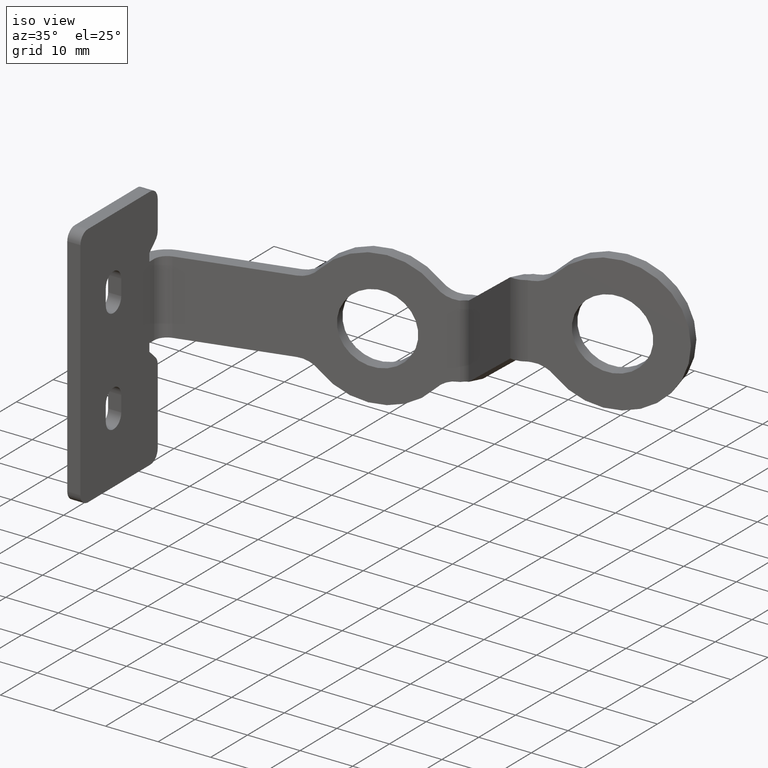
[diagram: clean part render]
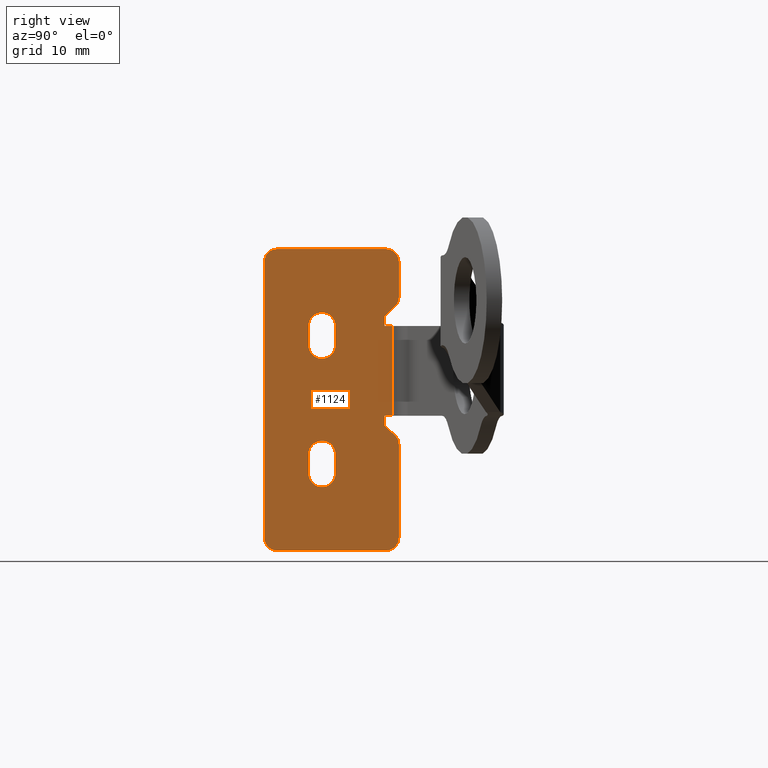
[diagram: tour spotlight — one face highlighted and labeled with its STEP entity id]
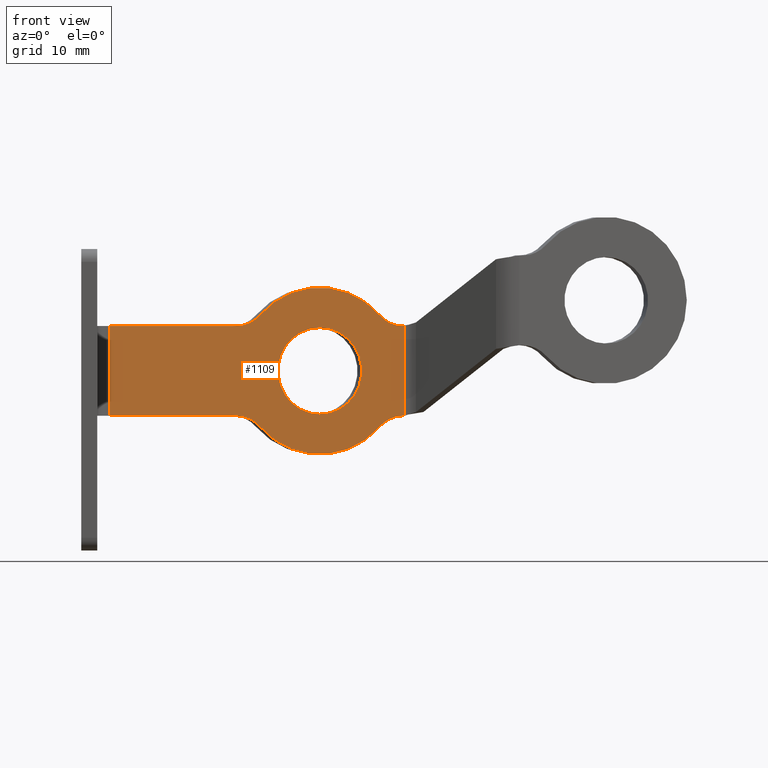
[diagram: tour spotlight — one face highlighted and labeled with its STEP entity id]
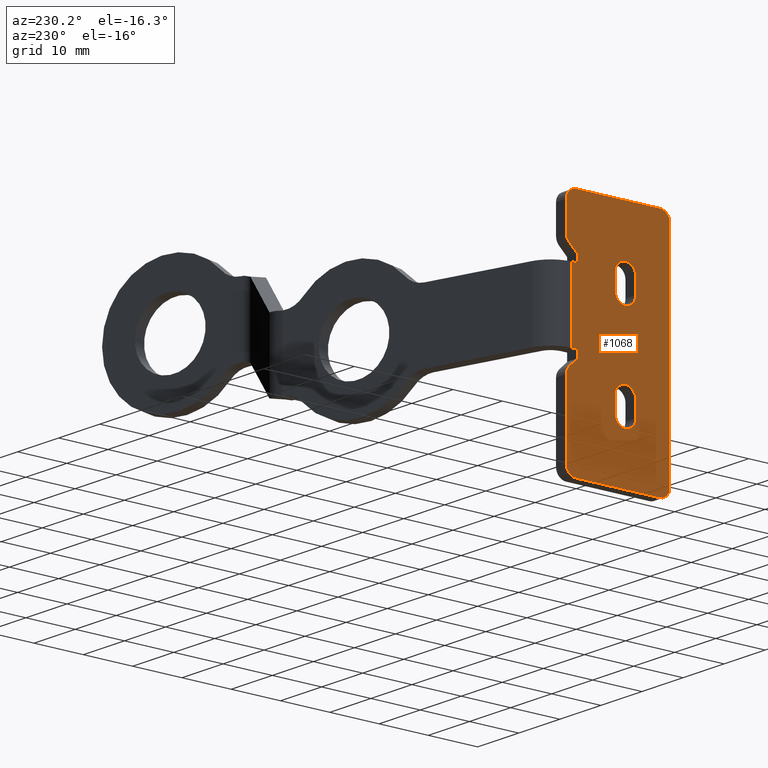
[diagram: tour spotlight — one face highlighted and labeled with its STEP entity id]
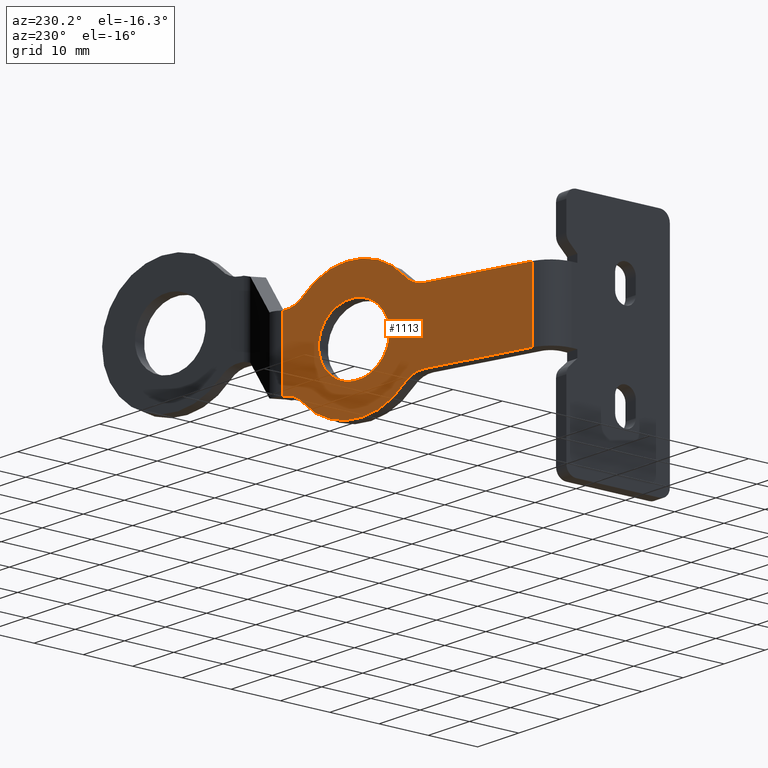
[diagram: tour spotlight — one face highlighted and labeled with its STEP entity id]
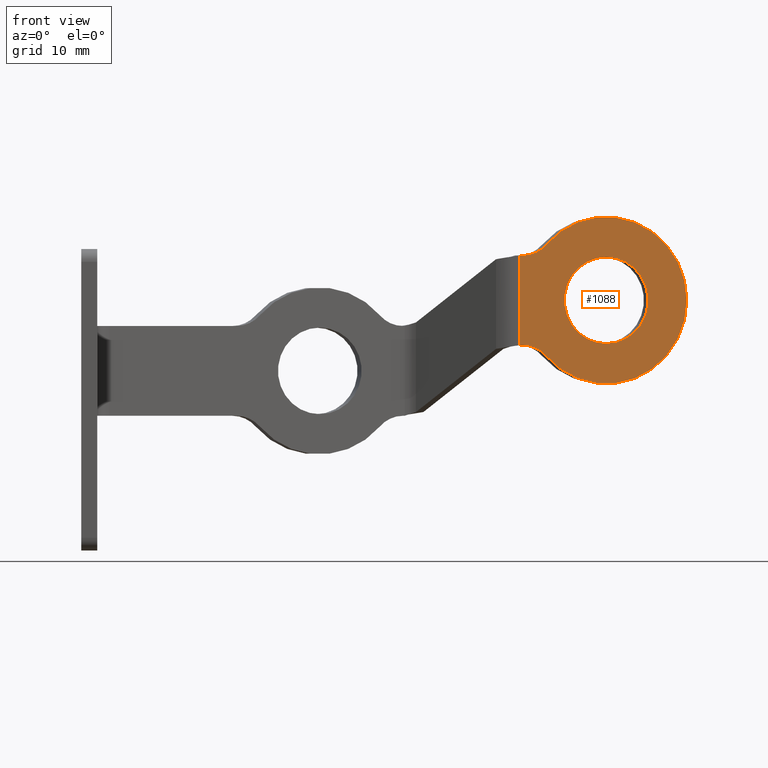
[diagram: tour spotlight — one face highlighted and labeled with its STEP entity id]
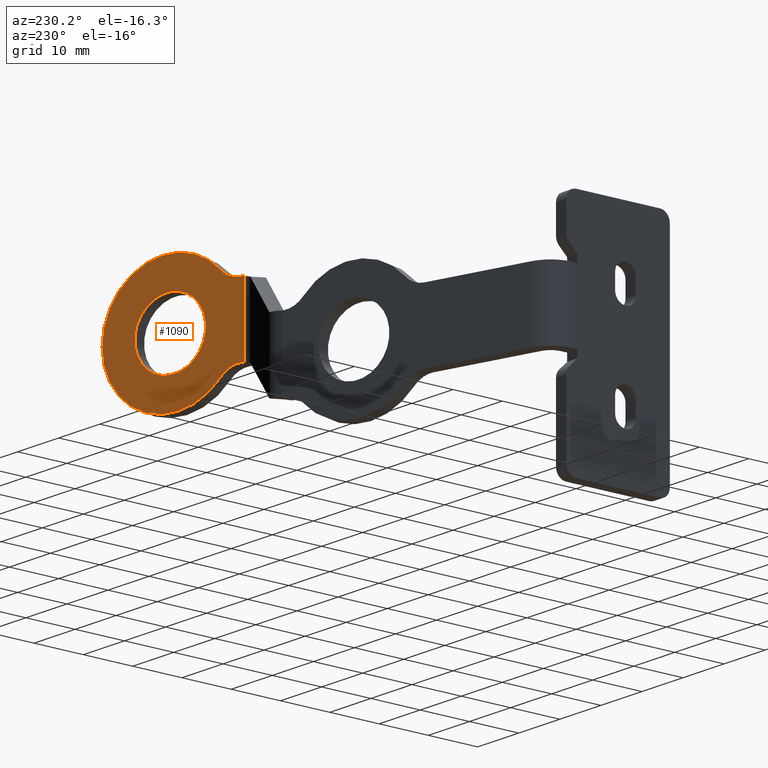
[diagram: tour spotlight — one face highlighted and labeled with its STEP entity id]
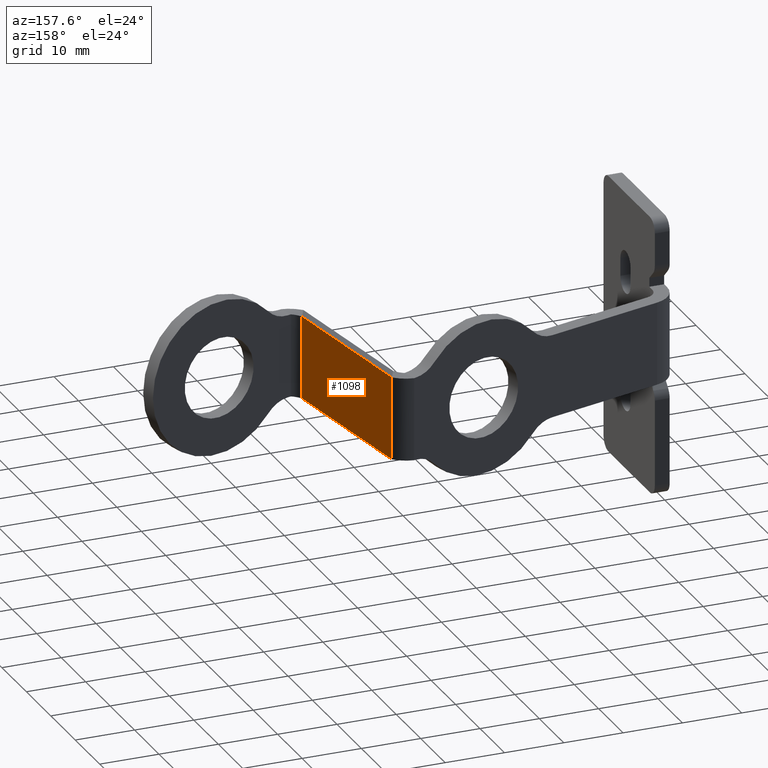
[diagram: tour spotlight — one face highlighted and labeled with its STEP entity id]
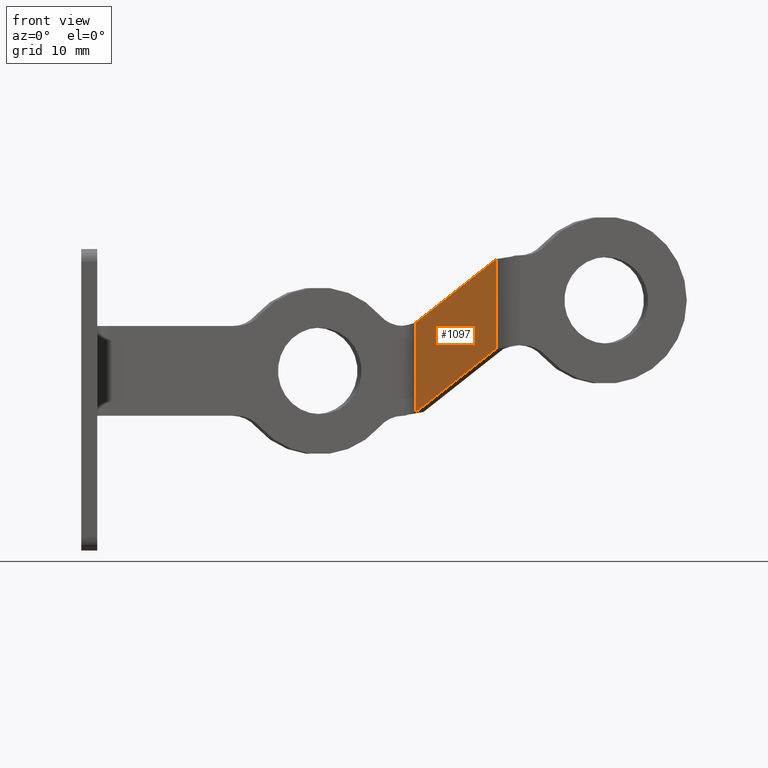
[diagram: tour spotlight — one face highlighted and labeled with its STEP entity id]
A machine part: a face-by-face anatomy tour. The part has 62 B-rep faces; the first image is the clean iso view, then the 8 largest visible faces are spotlighted one at a time (largest first), each with its STEP entity span.

Face 1 — right view, entity #1124. In plain terms, the highlighted planar face has unit normal (1, 0, 0).
Definition (entity closure, byte-faithful):
#33=FACE_BOUND('',#238,.T.);
#34=FACE_BOUND('',#239,.T.);
#36=CIRCLE('',#1144,2.);
#37=CIRCLE('',#1146,2.);
#47=CIRCLE('',#1159,2.);
#48=CIRCLE('',#1162,2.);
#49=CIRCLE('',#1165,2.);
#50=CIRCLE('',#1168,2.);
#77=CIRCLE('',#1231,2.1);
#78=CIRCLE('',#1234,2.1);
#79=CIRCLE('',#1237,2.1);
#80=CIRCLE('',#1240,2.1);
#169=FACE_OUTER_BOUND('',#237,.T.);
#237=EDGE_LOOP('',(#1006,#1007,#1008,#1009,#1010,#1011,#1012,#1013,#1014,
#1015,#1016,#1017,#1018,#1019,#1020,#1021,#1022,#1023));
#238=EDGE_LOOP('',(#1024,#1025,#1026,#1027));
#239=EDGE_LOOP('',(#1028,#1029,#1030,#1031));
#242=LINE('',#1567,#348);
#246=LINE('',#1574,#352);
#249=LINE('',#1582,#355);
#267=LINE('',#1640,#373);
#271=LINE('',#1650,#377);
#273=LINE('',#1656,#379);
#276=LINE('',#1664,#382);
#279=LINE('',#1675,#385);
#282=LINE('',#1685,#388);
#331=LINE('',#1927,#437);
#332=LINE('',#1930,#438);
#334=LINE('',#1935,#440);
#337=LINE('',#1943,#443);
#340=LINE('',#1951,#446);
#343=LINE('',#1959,#449);
#345=LINE('',#1964,#451);
#348=VECTOR('',#1249,10.);
#352=VECTOR('',#1255,10.);
#355=VECTOR('',#1260,10.);
#373=VECTOR('',#1310,10.);
#377=VECTOR('',#1320,10.);
#379=VECTOR('',#1328,10.);
#382=VECTOR('',#1337,10.);
#385=VECTOR('',#1348,10.);
#388=VECTOR('',#1357,10.);
#437=VECTOR('',#1512,10.);
#438=VECTOR('',#1517,10.);
#440=VECTOR('',#1521,10.);
#443=VECTOR('',#1530,10.);
#446=VECTOR('',#1539,10.);
#449=VECTOR('',#1548,10.);
#451=VECTOR('',#1556,10.);
#454=VERTEX_POINT('',#1564);
#455=VERTEX_POINT('',#1566);
#457=VERTEX_POINT('',#1572);
#460=VERTEX_POINT('',#1579);
#461=VERTEX_POINT('',#1581);
#463=VERTEX_POINT('',#1587);
#464=VERTEX_POINT('',#1591);
#485=VERTEX_POINT('',#1638);
#486=VERTEX_POINT('',#1642);
#487=VERTEX_POINT('',#1643);
#488=VERTEX_POINT('',#1648);
#489=VERTEX_POINT('',#1652);
#490=VERTEX_POINT('',#1658);
#491=VERTEX_POINT('',#1659);
#492=VERTEX_POINT('',#1666);
#495=VERTEX_POINT('',#1673);
#498=VERTEX_POINT('',#1682);
#499=VERTEX_POINT('',#1684);
#544=VERTEX_POINT('',#1932);
#545=VERTEX_POINT('',#1934);
#546=VERTEX_POINT('',#1938);
#547=VERTEX_POINT('',#1942);
#548=VERTEX_POINT('',#1948);
#549=VERTEX_POINT('',#1950);
#550=VERTEX_POINT('',#1954);
#551=VERTEX_POINT('',#1958);
#554=EDGE_CURVE('',#455,#454,#242,.T.);
#558=EDGE_CURVE('',#454,#457,#246,.T.);
#561=EDGE_CURVE('',#461,#460,#249,.T.);
#565=EDGE_CURVE('',#463,#460,#36,.T.);
#566=EDGE_CURVE('',#455,#464,#37,.T.);
#591=EDGE_CURVE('',#463,#485,#267,.T.);
#592=EDGE_CURVE('',#486,#487,#47,.T.);
#596=EDGE_CURVE('',#486,#488,#271,.T.);
#597=EDGE_CURVE('',#489,#488,#48,.T.);
#599=EDGE_CURVE('',#489,#464,#273,.T.);
#600=EDGE_CURVE('',#490,#491,#49,.T.);
#603=EDGE_CURVE('',#490,#487,#276,.T.);
#604=EDGE_CURVE('',#492,#485,#50,.T.);
#608=EDGE_CURVE('',#457,#495,#279,.T.);
#613=EDGE_CURVE('',#499,#498,#282,.T.);
#693=EDGE_CURVE('',#495,#499,#331,.T.);
#694=EDGE_CURVE('',#498,#461,#332,.T.);
#696=EDGE_CURVE('',#545,#544,#334,.T.);
#698=EDGE_CURVE('',#546,#545,#77,.T.);
#700=EDGE_CURVE('',#547,#546,#337,.T.);
#702=EDGE_CURVE('',#544,#547,#78,.T.);
#704=EDGE_CURVE('',#549,#548,#340,.T.);
#706=EDGE_CURVE('',#550,#549,#79,.T.);
#708=EDGE_CURVE('',#551,#550,#343,.T.);
#710=EDGE_CURVE('',#548,#551,#80,.T.);
#711=EDGE_CURVE('',#492,#491,#345,.T.);
#1006=ORIENTED_EDGE('',*,*,#558,.T.);
#1007=ORIENTED_EDGE('',*,*,#608,.T.);
#1008=ORIENTED_EDGE('',*,*,#693,.T.);
#1009=ORIENTED_EDGE('',*,*,#613,.T.);
#1010=ORIENTED_EDGE('',*,*,#694,.T.);
#1011=ORIENTED_EDGE('',*,*,#561,.T.);
#1012=ORIENTED_EDGE('',*,*,#565,.F.);
#1013=ORIENTED_EDGE('',*,*,#591,.T.);
#1014=ORIENTED_EDGE('',*,*,#604,.F.);
#1015=ORIENTED_EDGE('',*,*,#711,.T.);
#1016=ORIENTED_EDGE('',*,*,#600,.F.);
#1017=ORIENTED_EDGE('',*,*,#603,.T.);
#1018=ORIENTED_EDGE('',*,*,#592,.F.);
#1019=ORIENTED_EDGE('',*,*,#596,.T.);
#1020=ORIENTED_EDGE('',*,*,#597,.F.);
#1021=ORIENTED_EDGE('',*,*,#599,.T.);
#1022=ORIENTED_EDGE('',*,*,#566,.F.);
#1023=ORIENTED_EDGE('',*,*,#554,.T.);
#1024=ORIENTED_EDGE('',*,*,#710,.T.);
#1025=ORIENTED_EDGE('',*,*,#708,.T.);
#1026=ORIENTED_EDGE('',*,*,#706,.T.);
#1027=ORIENTED_EDGE('',*,*,#704,.T.);
#1028=ORIENTED_EDGE('',*,*,#702,.T.);
#1029=ORIENTED_EDGE('',*,*,#700,.T.);
#1030=ORIENTED_EDGE('',*,*,#698,.T.);
#1031=ORIENTED_EDGE('',*,*,#696,.T.);
#1062=PLANE('',#1242);
#1124=ADVANCED_FACE('',(#169,#33,#34),#1062,.T.);
#1144=AXIS2_PLACEMENT_3D('',#1589,#1267,#1268);
#1146=AXIS2_PLACEMENT_3D('',#1592,#1271,#1272);
#1159=AXIS2_PLACEMENT_3D('',#1644,#1313,#1314);
#1162=AXIS2_PLACEMENT_3D('',#1653,#1323,#1324);
#1165=AXIS2_PLACEMENT_3D('',#1660,#1331,#1332);
#1168=AXIS2_PLACEMENT_3D('',#1667,#1340,#1341);
#1231=AXIS2_PLACEMENT_3D('',#1939,#1525,#1526);
#1234=AXIS2_PLACEMENT_3D('',#1946,#1534,#1535);
#1237=AXIS2_PLACEMENT_3D('',#1955,#1543,#1544);
#1240=AXIS2_PLACEMENT_3D('',#1962,#1552,#1553);
#1242=AXIS2_PLACEMENT_3D('',#1965,#1557,#1558);
#1249=DIRECTION('',(0.,-0.724137931034481,0.689655172413795));
#1255=DIRECTION('',(0.,0.,1.));
#1260=DIRECTION('',(0.,0.724137931034483,0.689655172413792));
#1267=DIRECTION('center_axis',(-1.,0.,0.));
#1268=DIRECTION('ref_axis',(0.,0.707106781186548,-0.707106781186548));
#1271=DIRECTION('center_axis',(-1.,0.,0.));
#1272=DIRECTION('ref_axis',(0.,0.707106781186548,0.707106781186547));
#1310=DIRECTION('',(0.,0.,1.));
#1313=DIRECTION('center_axis',(-1.,0.,0.));
#1314=DIRECTION('ref_axis',(0.,-0.707106781186547,-0.707106781186548));
#1320=DIRECTION('',(0.,1.,0.));
#1323=DIRECTION('center_axis',(-1.,0.,0.));
#1324=DIRECTION('ref_axis',(0.,0.707106781186547,-0.707106781186548));
#1328=DIRECTION('',(0.,0.,1.));
#1331=DIRECTION('center_axis',(-1.,0.,0.));
#1332=DIRECTION('ref_axis',(0.,-0.707106781186547,0.707106781186548));
#1337=DIRECTION('',(0.,0.,-1.));
#1340=DIRECTION('center_axis',(-1.,0.,0.));
#1341=DIRECTION('ref_axis',(0.,0.707106781186548,0.707106781186548));
#1348=DIRECTION('',(0.,1.,0.));
#1357=DIRECTION('',(0.,-1.,0.));
#1512=DIRECTION('',(0.,0.,1.));
#1517=DIRECTION('',(0.,0.,1.));
#1521=DIRECTION('',(0.,-9.25185853854296E-17,1.));
#1525=DIRECTION('center_axis',(-1.,0.,0.));
#1526=DIRECTION('ref_axis',(0.,-1.,0.));
#1530=DIRECTION('',(0.,-9.25185853854296E-17,-1.));
#1534=DIRECTION('center_axis',(-1.,0.,0.));
#1535=DIRECTION('ref_axis',(0.,1.,-1.32169407693471E-16));
#1539=DIRECTION('',(0.,1.85037170770859E-16,1.));
#1543=DIRECTION('center_axis',(-1.,0.,0.));
#1544=DIRECTION('ref_axis',(0.,-1.,0.));
#1548=DIRECTION('',(0.,0.,-1.));
#1552=DIRECTION('center_axis',(-1.,0.,0.));
#1553=DIRECTION('ref_axis',(0.,1.,0.));
#1556=DIRECTION('',(0.,-1.,0.));
#1557=DIRECTION('center_axis',(1.,0.,0.));
#1558=DIRECTION('ref_axis',(0.,1.,0.));
#1564=CARTESIAN_POINT('',(2.5,9.75,6.00000000000001));
#1566=CARTESIAN_POINT('',(2.5,11.3793103448276,4.44827586206898));
#1567=CARTESIAN_POINT('',(2.5,11.3793103448276,4.44827586206898));
#1572=CARTESIAN_POINT('',(2.5,9.75,7.5));
#1574=CARTESIAN_POINT('',(2.5,9.75,7.5));
#1579=CARTESIAN_POINT('',(2.5,11.3793103448276,24.551724137931));
#1581=CARTESIAN_POINT('',(2.5,9.75,23.));
#1582=CARTESIAN_POINT('',(2.5,11.3793103448276,24.551724137931));
#1587=CARTESIAN_POINT('',(2.5,12.,26.));
#1589=CARTESIAN_POINT('Origin',(2.5,10.,26.));
#1591=CARTESIAN_POINT('',(2.5,12.,3.));
#1592=CARTESIAN_POINT('Origin',(2.5,10.,3.));
#1638=CARTESIAN_POINT('',(2.5,12.,31.5));
#1640=CARTESIAN_POINT('',(2.5,12.,33.5));
#1642=CARTESIAN_POINT('',(2.5,-7.,-13.5));
#1643=CARTESIAN_POINT('',(2.5,-9.,-11.5));
#1644=CARTESIAN_POINT('Origin',(2.5,-7.,-11.5));
#1648=CARTESIAN_POINT('',(2.5,10.,-13.5));
#1650=CARTESIAN_POINT('',(2.5,11.,-13.5));
#1652=CARTESIAN_POINT('',(2.5,12.,-11.5));
#1653=CARTESIAN_POINT('Origin',(2.5,10.,-11.5));
#1656=CARTESIAN_POINT('',(2.5,12.,33.5));
#1658=CARTESIAN_POINT('',(2.5,-9.,31.5));
#1659=CARTESIAN_POINT('',(2.5,-7.,33.5));
#1660=CARTESIAN_POINT('Origin',(2.5,-7.,31.5));
#1664=CARTESIAN_POINT('',(2.5,-9.,-13.5));
#1666=CARTESIAN_POINT('',(2.5,10.,33.5));
#1667=CARTESIAN_POINT('Origin',(2.5,10.,31.5));
#1673=CARTESIAN_POINT('',(2.5,11.,7.50000000000001));
#1675=CARTESIAN_POINT('',(2.5,5.125,7.5));
#1682=CARTESIAN_POINT('',(2.5,9.75,21.5));
#1684=CARTESIAN_POINT('',(2.5,11.,21.5));
#1685=CARTESIAN_POINT('',(2.5,5.75,21.5));
#1927=CARTESIAN_POINT('',(2.5,11.,33.5));
#1930=CARTESIAN_POINT('',(2.5,9.75,15.75));
#1932=CARTESIAN_POINT('',(2.5,-2.1,1.5));
#1934=CARTESIAN_POINT('',(2.5,-2.1,-1.5));
#1935=CARTESIAN_POINT('',(2.5,-2.1,1.5));
#1938=CARTESIAN_POINT('',(2.5,2.1,-1.5));
#1939=CARTESIAN_POINT('Origin',(2.5,0.,-1.5));
#1942=CARTESIAN_POINT('',(2.5,2.1,1.5));
#1943=CARTESIAN_POINT('',(2.5,2.1,-1.5));
#1946=CARTESIAN_POINT('Origin',(2.5,0.,1.5));
#1948=CARTESIAN_POINT('',(2.5,-2.1,21.5));
#1950=CARTESIAN_POINT('',(2.5,-2.1,18.5));
#1951=CARTESIAN_POINT('',(2.5,-2.1,21.5));
#1954=CARTESIAN_POINT('',(2.5,2.1,18.5));
#1955=CARTESIAN_POINT('Origin',(2.5,0.,18.5));
#1958=CARTESIAN_POINT('',(2.5,2.1,21.5));
#1959=CARTESIAN_POINT('',(2.5,2.1,18.5));
#1962=CARTESIAN_POINT('Origin',(2.5,0.,21.5));
#1964=CARTESIAN_POINT('',(2.5,-10.,33.5));
#1965=CARTESIAN_POINT('Origin',(2.5,0.500000000000002,10.));

Face 2 — front view, entity #1109. In plain terms, the highlighted planar face has unit normal (0.2588, -0.9659, 0).
Definition (entity closure, byte-faithful):
#31=FACE_BOUND('',#221,.T.);
#55=CIRCLE('',#1176,5.);
#57=CIRCLE('',#1179,13.);
#60=CIRCLE('',#1183,5.);
#61=CIRCLE('',#1185,5.);
#63=CIRCLE('',#1188,13.);
#66=CIRCLE('',#1192,5.);
#76=CIRCLE('',#1210,6.75);
#154=FACE_OUTER_BOUND('',#220,.T.);
#220=EDGE_LOOP('',(#928,#929,#930,#931,#932,#933,#934,#935,#936,#937,#938,
#939));
#221=EDGE_LOOP('',(#940));
#307=LINE('',#1783,#413);
#308=LINE('',#1786,#414);
#324=LINE('',#1915,#430);
#326=LINE('',#1919,#432);
#327=LINE('',#1920,#433);
#328=LINE('',#1921,#434);
#413=VECTOR('',#1460,3.6);
#414=VECTOR('',#1463,3.6);
#430=VECTOR('',#1495,10.);
#432=VECTOR('',#1501,10.);
#433=VECTOR('',#1502,3.6);
#434=VECTOR('',#1503,3.6);
#493=VERTEX_POINT('',#1670);
#497=VERTEX_POINT('',#1679);
#500=VERTEX_POINT('',#1688);
#501=VERTEX_POINT('',#1689);
#504=VERTEX_POINT('',#1697);
#507=VERTEX_POINT('',#1705);
#508=VERTEX_POINT('',#1709);
#509=VERTEX_POINT('',#1710);
#512=VERTEX_POINT('',#1718);
#515=VERTEX_POINT('',#1726);
#531=VERTEX_POINT('',#1773);
#533=VERTEX_POINT('',#1781);
#534=VERTEX_POINT('',#1785);
#615=EDGE_CURVE('',#500,#501,#55,.T.);
#619=EDGE_CURVE('',#501,#504,#57,.T.);
#623=EDGE_CURVE('',#504,#507,#60,.T.);
#625=EDGE_CURVE('',#508,#509,#61,.T.);
#629=EDGE_CURVE('',#509,#512,#63,.T.);
#633=EDGE_CURVE('',#512,#515,#66,.T.);
#657=EDGE_CURVE('',#531,#531,#76,.T.);
#661=EDGE_CURVE('',#533,#500,#307,.T.);
#662=EDGE_CURVE('',#534,#515,#308,.T.);
#686=EDGE_CURVE('',#533,#534,#324,.T.);
#688=EDGE_CURVE('',#497,#493,#326,.T.);
#689=EDGE_CURVE('',#507,#493,#327,.T.);
#690=EDGE_CURVE('',#508,#497,#328,.T.);
#928=ORIENTED_EDGE('',*,*,#688,.T.);
#929=ORIENTED_EDGE('',*,*,#689,.F.);
#930=ORIENTED_EDGE('',*,*,#623,.F.);
#931=ORIENTED_EDGE('',*,*,#619,.F.);
#932=ORIENTED_EDGE('',*,*,#615,.F.);
#933=ORIENTED_EDGE('',*,*,#661,.F.);
#934=ORIENTED_EDGE('',*,*,#686,.T.);
#935=ORIENTED_EDGE('',*,*,#662,.T.);
#936=ORIENTED_EDGE('',*,*,#633,.F.);
#937=ORIENTED_EDGE('',*,*,#629,.F.);
#938=ORIENTED_EDGE('',*,*,#625,.F.);
#939=ORIENTED_EDGE('',*,*,#690,.T.);
#940=ORIENTED_EDGE('',*,*,#657,.T.);
#1052=PLANE('',#1223);
#1109=ADVANCED_FACE('',(#154,#31),#1052,.T.);
#1176=AXIS2_PLACEMENT_3D('',#1690,#1362,#1363);
#1179=AXIS2_PLACEMENT_3D('',#1698,#1370,#1371);
#1183=AXIS2_PLACEMENT_3D('',#1706,#1379,#1380);
#1185=AXIS2_PLACEMENT_3D('',#1711,#1384,#1385);
#1188=AXIS2_PLACEMENT_3D('',#1719,#1392,#1393);
#1192=AXIS2_PLACEMENT_3D('',#1727,#1401,#1402);
#1210=AXIS2_PLACEMENT_3D('',#1775,#1451,#1452);
#1223=AXIS2_PLACEMENT_3D('',#1918,#1499,#1500);
#1362=DIRECTION('center_axis',(0.258819045102521,-0.965925826289068,0.));
#1363=DIRECTION('ref_axis',(-0.394337567297406,-0.105662432702594,0.912870929175277));
#1370=DIRECTION('center_axis',(-0.258819045102521,0.965925826289068,0.));
#1371=DIRECTION('ref_axis',(-0.965925826289068,-0.258819045102521,0.));
#1379=DIRECTION('center_axis',(0.258819045102521,-0.965925826289068,0.));
#1380=DIRECTION('ref_axis',(0.394337567297407,0.105662432702594,0.912870929175277));
#1384=DIRECTION('center_axis',(0.258819045102521,-0.965925826289068,0.));
#1385=DIRECTION('ref_axis',(0.394337567297406,0.105662432702594,-0.912870929175277));
#1392=DIRECTION('center_axis',(-0.258819045102521,0.965925826289068,0.));
#1393=DIRECTION('ref_axis',(-0.965925826289068,-0.258819045102521,0.));
#1401=DIRECTION('center_axis',(0.258819045102521,-0.965925826289068,0.));
#1402=DIRECTION('ref_axis',(-0.394337567297407,-0.105662432702594,-0.912870929175276));
#1451=DIRECTION('center_axis',(-0.258819045102521,0.965925826289068,0.));
#1452=DIRECTION('ref_axis',(0.,0.,1.));
#1460=DIRECTION('',(-0.965925826289068,-0.258819045102521,0.));
#1463=DIRECTION('',(-0.965925826289068,-0.258819045102521,0.));
#1495=DIRECTION('',(0.,0.,1.));
#1499=DIRECTION('center_axis',(0.258819045102521,-0.965925826289068,0.));
#1500=DIRECTION('ref_axis',(0.965925826289068,0.258819045102521,0.));
#1501=DIRECTION('',(0.,0.,-1.));
#1502=DIRECTION('',(-0.965925826289068,-0.258819045102521,0.));
#1503=DIRECTION('',(-0.965925826289068,-0.258819045102521,0.));
#1670=CARTESIAN_POINT('',(4.35295238724369,13.4148145657227,7.50000000000001));
#1679=CARTESIAN_POINT('',(4.35295238724369,13.4148145657227,21.5));
#1688=CARTESIAN_POINT('',(50.1536853339021,25.6870839715333,7.5));
#1689=CARTESIAN_POINT('',(46.5538923192271,24.7225223403319,5.83333333333334));
#1690=CARTESIAN_POINT('Origin',(50.1536853339021,25.6870839715333,2.50000000000001));
#1697=CARTESIAN_POINT('',(27.834968642917,19.7068018580848,5.83333333333334));
#1698=CARTESIAN_POINT('Origin',(37.194430481072,22.2146620992084,14.5));
#1705=CARTESIAN_POINT('',(24.235175628242,18.7422402268835,7.5));
#1706=CARTESIAN_POINT('Origin',(24.235175628242,18.7422402268835,2.50000000000001));
#1709=CARTESIAN_POINT('',(24.235175628242,18.7422402268835,21.5));
#1710=CARTESIAN_POINT('',(27.834968642917,19.7068018580848,23.1666666666667));
#1711=CARTESIAN_POINT('Origin',(24.235175628242,18.7422402268835,26.5));
#1718=CARTESIAN_POINT('',(46.5538923192271,24.7225223403319,23.1666666666667));
#1719=CARTESIAN_POINT('Origin',(37.194430481072,22.2146620992084,14.5));
#1726=CARTESIAN_POINT('',(50.1536853339021,25.6870839715333,21.5));
#1727=CARTESIAN_POINT('Origin',(50.1536853339021,25.6870839715333,26.5));
#1773=CARTESIAN_POINT('',(37.194430481072,22.2146620992084,7.75));
#1775=CARTESIAN_POINT('Origin',(37.194430481072,22.2146620992084,14.5));
#1781=CARTESIAN_POINT('',(50.3922276666433,25.751001196952,7.50000000000001));
#1783=CARTESIAN_POINT('',(-6.5714113399729,10.4876401271911,7.5));
#1785=CARTESIAN_POINT('',(50.3922276666433,25.751001196952,21.5));
#1786=CARTESIAN_POINT('',(-6.5714113399729,10.4876401271911,21.5));
#1915=CARTESIAN_POINT('',(50.3922276666433,25.751001196952,7.50000000000001));
#1918=CARTESIAN_POINT('Origin',(-10.3410870084651,9.47755857609139,10.));
#1919=CARTESIAN_POINT('',(4.35295238724369,13.4148145657227,14.5));
#1920=CARTESIAN_POINT('',(-6.5714113399729,10.4876401271911,7.5));
#1921=CARTESIAN_POINT('',(-6.5714113399729,10.4876401271911,21.5));

Face 3 — auxiliary view, entity #1068. In plain terms, the highlighted planar face has unit normal (1, 0, 0).
Definition (entity closure, byte-faithful):
#27=FACE_BOUND('',#176,.T.);
#28=FACE_BOUND('',#177,.T.);
#35=CIRCLE('',#1143,2.);
#38=CIRCLE('',#1147,2.);
#39=CIRCLE('',#1149,2.);
#40=CIRCLE('',#1150,2.);
#41=CIRCLE('',#1151,2.);
#42=CIRCLE('',#1152,2.);
#43=CIRCLE('',#1153,2.1);
#44=CIRCLE('',#1154,2.1);
#45=CIRCLE('',#1155,2.1);
#46=CIRCLE('',#1156,2.1);
#113=FACE_OUTER_BOUND('',#175,.T.);
#175=EDGE_LOOP('',(#732,#733,#734,#735,#736,#737,#738,#739,#740,#741,#742,
#743,#744,#745,#746,#747,#748,#749));
#176=EDGE_LOOP('',(#750,#751,#752,#753));
#177=EDGE_LOOP('',(#754,#755,#756,#757));
#240=LINE('',#1563,#346);
#244=LINE('',#1571,#350);
#247=LINE('',#1578,#353);
#253=LINE('',#1598,#359);
#254=LINE('',#1602,#360);
#255=LINE('',#1606,#361);
#256=LINE('',#1610,#362);
#257=LINE('',#1613,#363);
#258=LINE('',#1615,#364);
#259=LINE('',#1617,#365);
#260=LINE('',#1619,#366);
#261=LINE('',#1620,#367);
#262=LINE('',#1625,#368);
#263=LINE('',#1628,#369);
#264=LINE('',#1633,#370);
#265=LINE('',#1636,#371);
#346=VECTOR('',#1247,10.);
#350=VECTOR('',#1253,10.);
#353=VECTOR('',#1258,10.);
#359=VECTOR('',#1278,10.);
#360=VECTOR('',#1281,10.);
#361=VECTOR('',#1284,10.);
#362=VECTOR('',#1287,10.);
#363=VECTOR('',#1290,10.);
#364=VECTOR('',#1291,10.);
#365=VECTOR('',#1292,10.);
#366=VECTOR('',#1293,10.);
#367=VECTOR('',#1294,10.);
#368=VECTOR('',#1297,10.);
#369=VECTOR('',#1300,10.);
#370=VECTOR('',#1303,10.);
#371=VECTOR('',#1306,10.);
#452=VERTEX_POINT('',#1561);
#453=VERTEX_POINT('',#1562);
#456=VERTEX_POINT('',#1570);
#458=VERTEX_POINT('',#1576);
#459=VERTEX_POINT('',#1577);
#462=VERTEX_POINT('',#1585);
#465=VERTEX_POINT('',#1593);
#466=VERTEX_POINT('',#1597);
#467=VERTEX_POINT('',#1599);
#468=VERTEX_POINT('',#1601);
#469=VERTEX_POINT('',#1603);
#470=VERTEX_POINT('',#1605);
#471=VERTEX_POINT('',#1607);
#472=VERTEX_POINT('',#1609);
#473=VERTEX_POINT('',#1611);
#474=VERTEX_POINT('',#1614);
#475=VERTEX_POINT('',#1616);
#476=VERTEX_POINT('',#1618);
#477=VERTEX_POINT('',#1621);
#478=VERTEX_POINT('',#1622);
#479=VERTEX_POINT('',#1624);
#480=VERTEX_POINT('',#1626);
#481=VERTEX_POINT('',#1629);
#482=VERTEX_POINT('',#1630);
#483=VERTEX_POINT('',#1632);
#484=VERTEX_POINT('',#1634);
#552=EDGE_CURVE('',#452,#453,#240,.T.);
#556=EDGE_CURVE('',#456,#453,#244,.T.);
#559=EDGE_CURVE('',#458,#459,#247,.T.);
#563=EDGE_CURVE('',#458,#462,#35,.T.);
#568=EDGE_CURVE('',#465,#452,#38,.T.);
#569=EDGE_CURVE('',#465,#466,#253,.T.);
#570=EDGE_CURVE('',#467,#466,#39,.T.);
#571=EDGE_CURVE('',#467,#468,#254,.T.);
#572=EDGE_CURVE('',#469,#468,#40,.T.);
#573=EDGE_CURVE('',#469,#470,#255,.T.);
#574=EDGE_CURVE('',#471,#470,#41,.T.);
#575=EDGE_CURVE('',#471,#472,#256,.T.);
#576=EDGE_CURVE('',#473,#472,#42,.T.);
#577=EDGE_CURVE('',#473,#462,#257,.T.);
#578=EDGE_CURVE('',#459,#474,#258,.T.);
#579=EDGE_CURVE('',#474,#475,#259,.T.);
#580=EDGE_CURVE('',#475,#476,#260,.T.);
#581=EDGE_CURVE('',#476,#456,#261,.T.);
#582=EDGE_CURVE('',#477,#478,#43,.T.);
#583=EDGE_CURVE('',#479,#477,#262,.T.);
#584=EDGE_CURVE('',#480,#479,#44,.T.);
#585=EDGE_CURVE('',#478,#480,#263,.T.);
#586=EDGE_CURVE('',#481,#482,#45,.T.);
#587=EDGE_CURVE('',#483,#481,#264,.T.);
#588=EDGE_CURVE('',#484,#483,#46,.T.);
#589=EDGE_CURVE('',#482,#484,#265,.T.);
#732=ORIENTED_EDGE('',*,*,#568,.F.);
#733=ORIENTED_EDGE('',*,*,#569,.T.);
#734=ORIENTED_EDGE('',*,*,#570,.F.);
#735=ORIENTED_EDGE('',*,*,#571,.T.);
#736=ORIENTED_EDGE('',*,*,#572,.F.);
#737=ORIENTED_EDGE('',*,*,#573,.T.);
#738=ORIENTED_EDGE('',*,*,#574,.F.);
#739=ORIENTED_EDGE('',*,*,#575,.T.);
#740=ORIENTED_EDGE('',*,*,#576,.F.);
#741=ORIENTED_EDGE('',*,*,#577,.T.);
#742=ORIENTED_EDGE('',*,*,#563,.F.);
#743=ORIENTED_EDGE('',*,*,#559,.T.);
#744=ORIENTED_EDGE('',*,*,#578,.T.);
#745=ORIENTED_EDGE('',*,*,#579,.T.);
#746=ORIENTED_EDGE('',*,*,#580,.T.);
#747=ORIENTED_EDGE('',*,*,#581,.T.);
#748=ORIENTED_EDGE('',*,*,#556,.T.);
#749=ORIENTED_EDGE('',*,*,#552,.F.);
#750=ORIENTED_EDGE('',*,*,#582,.F.);
#751=ORIENTED_EDGE('',*,*,#583,.F.);
#752=ORIENTED_EDGE('',*,*,#584,.F.);
#753=ORIENTED_EDGE('',*,*,#585,.F.);
#754=ORIENTED_EDGE('',*,*,#586,.F.);
#755=ORIENTED_EDGE('',*,*,#587,.F.);
#756=ORIENTED_EDGE('',*,*,#588,.F.);
#757=ORIENTED_EDGE('',*,*,#589,.F.);
#1035=PLANE('',#1148);
#1068=ADVANCED_FACE('',(#113,#27,#28),#1035,.F.);
#1143=AXIS2_PLACEMENT_3D('',#1586,#1264,#1265);
#1147=AXIS2_PLACEMENT_3D('',#1595,#1274,#1275);
#1148=AXIS2_PLACEMENT_3D('',#1596,#1276,#1277);
#1149=AXIS2_PLACEMENT_3D('',#1600,#1279,#1280);
#1150=AXIS2_PLACEMENT_3D('',#1604,#1282,#1283);
#1151=AXIS2_PLACEMENT_3D('',#1608,#1285,#1286);
#1152=AXIS2_PLACEMENT_3D('',#1612,#1288,#1289);
#1153=AXIS2_PLACEMENT_3D('',#1623,#1295,#1296);
#1154=AXIS2_PLACEMENT_3D('',#1627,#1298,#1299);
#1155=AXIS2_PLACEMENT_3D('',#1631,#1301,#1302);
#1156=AXIS2_PLACEMENT_3D('',#1635,#1304,#1305);
#1247=DIRECTION('',(0.,-0.724137931034481,0.689655172413795));
#1253=DIRECTION('',(0.,0.,-1.));
#1258=DIRECTION('',(0.,-0.724137931034483,-0.689655172413792));
#1264=DIRECTION('center_axis',(1.,0.,0.));
#1265=DIRECTION('ref_axis',(0.,0.707106781186548,-0.707106781186548));
#1274=DIRECTION('center_axis',(1.,0.,0.));
#1275=DIRECTION('ref_axis',(0.,0.707106781186548,0.707106781186547));
#1276=DIRECTION('center_axis',(1.,0.,0.));
#1277=DIRECTION('ref_axis',(0.,1.,0.));
#1278=DIRECTION('',(0.,0.,-1.));
#1279=DIRECTION('center_axis',(1.,0.,0.));
#1280=DIRECTION('ref_axis',(0.,0.707106781186547,-0.707106781186548));
#1281=DIRECTION('',(0.,-1.,0.));
#1282=DIRECTION('center_axis',(1.,0.,0.));
#1283=DIRECTION('ref_axis',(0.,-0.707106781186547,-0.707106781186548));
#1284=DIRECTION('',(0.,0.,1.));
#1285=DIRECTION('center_axis',(1.,0.,0.));
#1286=DIRECTION('ref_axis',(0.,-0.707106781186547,0.707106781186548));
#1287=DIRECTION('',(0.,1.,0.));
#1288=DIRECTION('center_axis',(1.,0.,0.));
#1289=DIRECTION('ref_axis',(0.,0.707106781186548,0.707106781186548));
#1290=DIRECTION('',(0.,0.,-1.));
#1291=DIRECTION('',(0.,0.,-1.));
#1292=DIRECTION('',(0.,1.,0.));
#1293=DIRECTION('',(0.,0.,-1.));
#1294=DIRECTION('',(0.,-1.,0.));
#1295=DIRECTION('center_axis',(-1.,0.,0.));
#1296=DIRECTION('ref_axis',(0.,1.,0.));
#1297=DIRECTION('',(0.,1.85037170770859E-16,1.));
#1298=DIRECTION('center_axis',(-1.,0.,0.));
#1299=DIRECTION('ref_axis',(0.,-1.,0.));
#1300=DIRECTION('',(0.,0.,-1.));
#1301=DIRECTION('center_axis',(-1.,0.,0.));
#1302=DIRECTION('ref_axis',(0.,1.,-1.32169407693471E-16));
#1303=DIRECTION('',(0.,-9.25185853854296E-17,1.));
#1304=DIRECTION('center_axis',(-1.,0.,0.));
#1305=DIRECTION('ref_axis',(0.,-1.,0.));
#1306=DIRECTION('',(0.,-9.25185853854296E-17,-1.));
#1561=CARTESIAN_POINT('',(0.,11.3793103448276,4.44827586206898));
#1562=CARTESIAN_POINT('',(0.,9.75,6.00000000000001));
#1563=CARTESIAN_POINT('',(0.,11.3793103448276,4.44827586206898));
#1570=CARTESIAN_POINT('',(0.,9.75,7.5));
#1571=CARTESIAN_POINT('',(0.,9.75,7.5));
#1576=CARTESIAN_POINT('',(0.,11.3793103448276,24.551724137931));
#1577=CARTESIAN_POINT('',(0.,9.75,23.));
#1578=CARTESIAN_POINT('',(0.,11.3793103448276,24.551724137931));
#1585=CARTESIAN_POINT('',(0.,12.,26.));
#1586=CARTESIAN_POINT('Origin',(0.,10.,26.));
#1593=CARTESIAN_POINT('',(0.,12.,3.));
#1595=CARTESIAN_POINT('Origin',(0.,10.,3.));
#1596=CARTESIAN_POINT('Origin',(0.,0.500000000000002,10.));
#1597=CARTESIAN_POINT('',(0.,12.,-11.5));
#1598=CARTESIAN_POINT('',(0.,12.,33.5));
#1599=CARTESIAN_POINT('',(0.,10.,-13.5));
#1600=CARTESIAN_POINT('Origin',(0.,10.,-11.5));
#1601=CARTESIAN_POINT('',(0.,-7.,-13.5));
#1602=CARTESIAN_POINT('',(0.,11.,-13.5));
#1603=CARTESIAN_POINT('',(0.,-9.,-11.5));
#1604=CARTESIAN_POINT('Origin',(0.,-7.,-11.5));
#1605=CARTESIAN_POINT('',(0.,-9.,31.5));
#1606=CARTESIAN_POINT('',(0.,-9.,-13.5));
#1607=CARTESIAN_POINT('',(0.,-7.,33.5));
#1608=CARTESIAN_POINT('Origin',(0.,-7.,31.5));
#1609=CARTESIAN_POINT('',(0.,10.,33.5));
#1610=CARTESIAN_POINT('',(0.,-10.,33.5));
#1611=CARTESIAN_POINT('',(0.,12.,31.5));
#1612=CARTESIAN_POINT('Origin',(0.,10.,31.5));
#1613=CARTESIAN_POINT('',(0.,12.,33.5));
#1614=CARTESIAN_POINT('',(0.,9.75,21.5));
#1615=CARTESIAN_POINT('',(0.,9.75,15.75));
#1616=CARTESIAN_POINT('',(0.,11.,21.5));
#1617=CARTESIAN_POINT('',(0.,5.75,21.5));
#1618=CARTESIAN_POINT('',(0.,11.,7.50000000000001));
#1619=CARTESIAN_POINT('',(0.,11.,33.5));
#1620=CARTESIAN_POINT('',(0.,5.125,7.5));
#1621=CARTESIAN_POINT('',(0.,-2.1,21.5));
#1622=CARTESIAN_POINT('',(0.,2.1,21.5));
#1623=CARTESIAN_POINT('Origin',(0.,0.,21.5));
#1624=CARTESIAN_POINT('',(0.,-2.1,18.5));
#1625=CARTESIAN_POINT('',(0.,-2.1,21.5));
#1626=CARTESIAN_POINT('',(0.,2.1,18.5));
#1627=CARTESIAN_POINT('Origin',(0.,0.,18.5));
#1628=CARTESIAN_POINT('',(0.,2.1,18.5));
#1629=CARTESIAN_POINT('',(0.,-2.1,1.5));
#1630=CARTESIAN_POINT('',(0.,2.1,1.5));
#1631=CARTESIAN_POINT('Origin',(0.,0.,1.5));
#1632=CARTESIAN_POINT('',(0.,-2.1,-1.5));
#1633=CARTESIAN_POINT('',(0.,-2.1,1.5));
#1634=CARTESIAN_POINT('',(0.,2.1,-1.5));
#1635=CARTESIAN_POINT('Origin',(0.,0.,-1.5));
#1636=CARTESIAN_POINT('',(0.,2.1,-1.5));

Face 4 — auxiliary view, entity #1113. In plain terms, the highlighted planar face has unit normal (0.2588, -0.9659, 0).
Definition (entity closure, byte-faithful):
#32=FACE_BOUND('',#226,.T.);
#56=CIRCLE('',#1177,5.);
#58=CIRCLE('',#1180,13.);
#59=CIRCLE('',#1182,5.);
#62=CIRCLE('',#1186,5.);
#64=CIRCLE('',#1189,13.);
#65=CIRCLE('',#1191,5.);
#75=CIRCLE('',#1209,6.75);
#158=FACE_OUTER_BOUND('',#225,.T.);
#225=EDGE_LOOP('',(#953,#954,#955,#956,#957,#958,#959,#960,#961,#962,#963,
#964));
#226=EDGE_LOOP('',(#965));
#305=LINE('',#1780,#411);
#310=LINE('',#1789,#416);
#323=LINE('',#1912,#429);
#325=LINE('',#1917,#431);
#329=LINE('',#1923,#435);
#330=LINE('',#1925,#436);
#411=VECTOR('',#1458,10.);
#416=VECTOR('',#1465,3.6);
#429=VECTOR('',#1490,10.);
#431=VECTOR('',#1498,10.);
#435=VECTOR('',#1506,10.);
#436=VECTOR('',#1509,3.6);
#494=VERTEX_POINT('',#1671);
#496=VERTEX_POINT('',#1678);
#502=VERTEX_POINT('',#1691);
#503=VERTEX_POINT('',#1693);
#505=VERTEX_POINT('',#1699);
#506=VERTEX_POINT('',#1703);
#510=VERTEX_POINT('',#1712);
#511=VERTEX_POINT('',#1714);
#513=VERTEX_POINT('',#1720);
#514=VERTEX_POINT('',#1724);
#530=VERTEX_POINT('',#1771);
#532=VERTEX_POINT('',#1779);
#535=VERTEX_POINT('',#1787);
#617=EDGE_CURVE('',#502,#503,#56,.T.);
#621=EDGE_CURVE('',#502,#505,#58,.T.);
#622=EDGE_CURVE('',#506,#505,#59,.T.);
#627=EDGE_CURVE('',#510,#511,#62,.T.);
#631=EDGE_CURVE('',#510,#513,#64,.T.);
#632=EDGE_CURVE('',#514,#513,#65,.T.);
#655=EDGE_CURVE('',#530,#530,#75,.T.);
#659=EDGE_CURVE('',#532,#503,#305,.T.);
#664=EDGE_CURVE('',#514,#535,#310,.T.);
#685=EDGE_CURVE('',#535,#532,#323,.T.);
#687=EDGE_CURVE('',#494,#496,#325,.T.);
#691=EDGE_CURVE('',#506,#494,#329,.T.);
#692=EDGE_CURVE('',#496,#511,#330,.T.);
#953=ORIENTED_EDGE('',*,*,#687,.T.);
#954=ORIENTED_EDGE('',*,*,#692,.T.);
#955=ORIENTED_EDGE('',*,*,#627,.F.);
#956=ORIENTED_EDGE('',*,*,#631,.T.);
#957=ORIENTED_EDGE('',*,*,#632,.F.);
#958=ORIENTED_EDGE('',*,*,#664,.T.);
#959=ORIENTED_EDGE('',*,*,#685,.T.);
#960=ORIENTED_EDGE('',*,*,#659,.T.);
#961=ORIENTED_EDGE('',*,*,#617,.F.);
#962=ORIENTED_EDGE('',*,*,#621,.T.);
#963=ORIENTED_EDGE('',*,*,#622,.F.);
#964=ORIENTED_EDGE('',*,*,#691,.T.);
#965=ORIENTED_EDGE('',*,*,#655,.T.);
#1055=PLANE('',#1227);
#1113=ADVANCED_FACE('',(#158,#32),#1055,.F.);
#1177=AXIS2_PLACEMENT_3D('',#1694,#1365,#1366);
#1180=AXIS2_PLACEMENT_3D('',#1701,#1373,#1374);
#1182=AXIS2_PLACEMENT_3D('',#1704,#1377,#1378);
#1186=AXIS2_PLACEMENT_3D('',#1715,#1387,#1388);
#1189=AXIS2_PLACEMENT_3D('',#1722,#1395,#1396);
#1191=AXIS2_PLACEMENT_3D('',#1725,#1399,#1400);
#1209=AXIS2_PLACEMENT_3D('',#1772,#1448,#1449);
#1227=AXIS2_PLACEMENT_3D('',#1928,#1513,#1514);
#1365=DIRECTION('center_axis',(-0.258819045102521,0.965925826289068,0.));
#1366=DIRECTION('ref_axis',(-0.394337567297406,-0.105662432702594,0.912870929175277));
#1373=DIRECTION('center_axis',(-0.258819045102521,0.965925826289068,0.));
#1374=DIRECTION('ref_axis',(-0.965925826289068,-0.258819045102521,0.));
#1377=DIRECTION('center_axis',(-0.258819045102521,0.965925826289068,0.));
#1378=DIRECTION('ref_axis',(0.394337567297407,0.105662432702594,0.912870929175277));
#1387=DIRECTION('center_axis',(-0.258819045102521,0.965925826289068,0.));
#1388=DIRECTION('ref_axis',(0.394337567297406,0.105662432702594,-0.912870929175277));
#1395=DIRECTION('center_axis',(-0.258819045102521,0.965925826289068,0.));
#1396=DIRECTION('ref_axis',(-0.965925826289068,-0.258819045102521,0.));
#1399=DIRECTION('center_axis',(-0.258819045102521,0.965925826289068,0.));
#1400=DIRECTION('ref_axis',(-0.394337567297407,-0.105662432702594,-0.912870929175276));
#1448=DIRECTION('center_axis',(0.258819045102521,-0.965925826289068,0.));
#1449=DIRECTION('ref_axis',(0.,0.,1.));
#1458=DIRECTION('',(-0.965925826289068,-0.258819045102521,0.));
#1465=DIRECTION('',(0.965925826289068,0.258819045102521,0.));
#1490=DIRECTION('',(0.,0.,-1.));
#1498=DIRECTION('',(0.,0.,1.));
#1506=DIRECTION('',(-0.965925826289068,-0.258819045102521,0.));
#1509=DIRECTION('',(0.965925826289068,0.258819045102521,0.));
#1513=DIRECTION('center_axis',(0.258819045102521,-0.965925826289068,0.));
#1514=DIRECTION('ref_axis',(0.965925826289068,0.258819045102521,0.));
#1671=CARTESIAN_POINT('',(3.70590477448739,15.8296291314453,7.50000000000001));
#1678=CARTESIAN_POINT('',(3.70590477448739,15.8296291314453,21.5));
#1691=CARTESIAN_POINT('',(45.9068447064708,27.1373369060546,5.83333333333334));
#1693=CARTESIAN_POINT('',(49.5066377211458,28.101898537256,7.50000000000001));
#1694=CARTESIAN_POINT('Origin',(49.5066377211458,28.101898537256,2.50000000000001));
#1699=CARTESIAN_POINT('',(27.1879210301607,22.1216164238075,5.83333333333334));
#1701=CARTESIAN_POINT('Origin',(36.5473828683157,24.6294766649311,14.5));
#1703=CARTESIAN_POINT('',(23.5881280154857,21.1570547926061,7.50000000000001));
#1704=CARTESIAN_POINT('Origin',(23.5881280154857,21.1570547926061,2.50000000000001));
#1712=CARTESIAN_POINT('',(27.1879210301607,22.1216164238075,23.1666666666667));
#1714=CARTESIAN_POINT('',(23.5881280154857,21.1570547926061,21.5));
#1715=CARTESIAN_POINT('Origin',(23.5881280154857,21.1570547926061,26.5));
#1720=CARTESIAN_POINT('',(45.9068447064708,27.1373369060546,23.1666666666667));
#1722=CARTESIAN_POINT('Origin',(36.5473828683157,24.6294766649311,14.5));
#1724=CARTESIAN_POINT('',(49.5066377211458,28.101898537256,21.5));
#1725=CARTESIAN_POINT('Origin',(49.5066377211458,28.101898537256,26.5));
#1771=CARTESIAN_POINT('',(36.5473828683157,24.6294766649311,7.75));
#1772=CARTESIAN_POINT('Origin',(36.5473828683157,24.6294766649311,14.5));
#1779=CARTESIAN_POINT('',(49.745180053887,28.1658157626746,7.50000000000001));
#1780=CARTESIAN_POINT('',(3.70590477448739,15.8296291314453,7.50000000000001));
#1787=CARTESIAN_POINT('',(49.745180053887,28.1658157626746,21.5));
#1789=CARTESIAN_POINT('',(-7.21845895272921,12.9024546929138,21.5));
#1912=CARTESIAN_POINT('',(49.745180053887,28.1658157626746,7.50000000000001));
#1917=CARTESIAN_POINT('',(3.70590477448739,15.8296291314453,14.5));
#1923=CARTESIAN_POINT('',(3.70590477448739,15.8296291314453,7.50000000000001));
#1925=CARTESIAN_POINT('',(-7.21845895272921,12.9024546929138,21.5));
#1928=CARTESIAN_POINT('Origin',(-10.9881346212214,11.8923731418141,10.));

Face 5 — front view, entity #1088. In plain terms, the highlighted planar face has unit normal (0.2588, -0.9659, 0).
Definition (entity closure, byte-faithful):
#29=FACE_BOUND('',#198,.T.);
#68=CIRCLE('',#1195,5.);
#70=CIRCLE('',#1198,13.);
#71=CIRCLE('',#1200,5.);
#73=CIRCLE('',#1203,6.75);
#133=FACE_OUTER_BOUND('',#197,.T.);
#197=EDGE_LOOP('',(#838,#839,#840,#841,#842,#843));
#198=EDGE_LOOP('',(#844));
#295=LINE('',#1752,#401);
#296=LINE('',#1754,#402);
#297=LINE('',#1755,#403);
#401=VECTOR('',#1428,10.);
#402=VECTOR('',#1429,10.);
#403=VECTOR('',#1430,10.);
#518=VERTEX_POINT('',#1733);
#519=VERTEX_POINT('',#1735);
#521=VERTEX_POINT('',#1741);
#522=VERTEX_POINT('',#1745);
#524=VERTEX_POINT('',#1751);
#525=VERTEX_POINT('',#1753);
#526=VERTEX_POINT('',#1756);
#637=EDGE_CURVE('',#518,#519,#68,.T.);
#641=EDGE_CURVE('',#521,#518,#70,.T.);
#642=EDGE_CURVE('',#522,#521,#71,.T.);
#645=EDGE_CURVE('',#524,#522,#295,.T.);
#646=EDGE_CURVE('',#524,#525,#296,.T.);
#647=EDGE_CURVE('',#519,#525,#297,.T.);
#648=EDGE_CURVE('',#526,#526,#73,.T.);
#838=ORIENTED_EDGE('',*,*,#645,.F.);
#839=ORIENTED_EDGE('',*,*,#646,.T.);
#840=ORIENTED_EDGE('',*,*,#647,.F.);
#841=ORIENTED_EDGE('',*,*,#637,.F.);
#842=ORIENTED_EDGE('',*,*,#641,.F.);
#843=ORIENTED_EDGE('',*,*,#642,.F.);
#844=ORIENTED_EDGE('',*,*,#648,.F.);
#1042=PLANE('',#1202);
#1088=ADVANCED_FACE('',(#133,#29),#1042,.T.);
#1195=AXIS2_PLACEMENT_3D('',#1736,#1409,#1410);
#1198=AXIS2_PLACEMENT_3D('',#1743,#1417,#1418);
#1200=AXIS2_PLACEMENT_3D('',#1746,#1421,#1422);
#1202=AXIS2_PLACEMENT_3D('',#1750,#1426,#1427);
#1203=AXIS2_PLACEMENT_3D('',#1757,#1431,#1432);
#1409=DIRECTION('center_axis',(0.258819045102515,-0.96592582628907,0.));
#1410=DIRECTION('ref_axis',(0.394337567297408,0.105662432702594,0.912870929175276));
#1417=DIRECTION('center_axis',(-0.258819045102515,0.96592582628907,0.));
#1418=DIRECTION('ref_axis',(-0.965925826289068,-0.258819045102522,0.));
#1421=DIRECTION('center_axis',(0.258819045102515,-0.96592582628907,0.));
#1422=DIRECTION('ref_axis',(0.394337567297402,0.105662432702592,-0.912870929175279));
#1426=DIRECTION('center_axis',(0.258819045102515,-0.96592582628907,0.));
#1427=DIRECTION('ref_axis',(0.,0.,-1.));
#1428=DIRECTION('',(0.96592582628907,0.258819045102515,-1.05456286241187E-15));
#1429=DIRECTION('',(0.,0.,-1.));
#1430=DIRECTION('',(-0.96592582628907,-0.258819045102515,3.58551373220037E-15));
#1431=DIRECTION('center_axis',(0.258819045102515,-0.96592582628907,0.));
#1432=DIRECTION('ref_axis',(0.,0.,1.));
#1733=CARTESIAN_POINT('',(72.4811715258087,19.798980382931,16.8333333333334));
#1735=CARTESIAN_POINT('',(68.8813785111337,18.8344187517297,18.5000000000001));
#1736=CARTESIAN_POINT('Origin',(68.8813785111337,18.8344187517296,13.5000000000001));
#1741=CARTESIAN_POINT('',(72.4811715258088,19.798980382931,34.1666666666667));
#1743=CARTESIAN_POINT('Origin',(81.8406333639638,22.3068406240545,25.5));
#1745=CARTESIAN_POINT('',(68.8813785111338,18.8344187517297,32.5000000000001));
#1746=CARTESIAN_POINT('Origin',(68.8813785111338,18.8344187517296,37.5000000000001));
#1750=CARTESIAN_POINT('Origin',(82.8285575954894,22.5715541240749,25.5));
#1751=CARTESIAN_POINT('',(68.2639601952955,18.6689820126086,32.5000000000001));
#1752=CARTESIAN_POINT('',(85.7153358717383,23.3450640319235,32.5));
#1753=CARTESIAN_POINT('',(68.2639601952955,18.6689820126086,18.5000000000001));
#1754=CARTESIAN_POINT('',(68.2639601952955,18.6689820126086,12.25));
#1755=CARTESIAN_POINT('',(85.7153358717383,23.3450640319235,18.5));
#1756=CARTESIAN_POINT('',(81.8406333639636,22.3068406240552,18.75));
#1757=CARTESIAN_POINT('Origin',(81.8406333639638,22.3068406240545,25.5));

Face 6 — auxiliary view, entity #1090. In plain terms, the highlighted planar face has unit normal (-0.2588, 0.9659, 0).
Definition (entity closure, byte-faithful):
#30=FACE_BOUND('',#201,.T.);
#67=CIRCLE('',#1194,5.);
#69=CIRCLE('',#1197,13.);
#72=CIRCLE('',#1201,5.);
#74=CIRCLE('',#1206,6.75);
#135=FACE_OUTER_BOUND('',#200,.T.);
#200=EDGE_LOOP('',(#849,#850,#851,#852,#853,#854));
#201=EDGE_LOOP('',(#855));
#299=LINE('',#1761,#405);
#300=LINE('',#1764,#406);
#301=LINE('',#1765,#407);
#405=VECTOR('',#1436,10.);
#406=VECTOR('',#1439,10.);
#407=VECTOR('',#1440,10.);
#516=VERTEX_POINT('',#1730);
#517=VERTEX_POINT('',#1731);
#520=VERTEX_POINT('',#1739);
#523=VERTEX_POINT('',#1747);
#527=VERTEX_POINT('',#1759);
#528=VERTEX_POINT('',#1763);
#529=VERTEX_POINT('',#1766);
#635=EDGE_CURVE('',#516,#517,#67,.T.);
#639=EDGE_CURVE('',#520,#517,#69,.T.);
#643=EDGE_CURVE('',#520,#523,#72,.T.);
#650=EDGE_CURVE('',#516,#527,#299,.T.);
#651=EDGE_CURVE('',#527,#528,#300,.T.);
#652=EDGE_CURVE('',#528,#523,#301,.T.);
#653=EDGE_CURVE('',#529,#529,#74,.T.);
#849=ORIENTED_EDGE('',*,*,#639,.T.);
#850=ORIENTED_EDGE('',*,*,#635,.F.);
#851=ORIENTED_EDGE('',*,*,#650,.T.);
#852=ORIENTED_EDGE('',*,*,#651,.T.);
#853=ORIENTED_EDGE('',*,*,#652,.T.);
#854=ORIENTED_EDGE('',*,*,#643,.F.);
#855=ORIENTED_EDGE('',*,*,#653,.F.);
#1044=PLANE('',#1205);
#1090=ADVANCED_FACE('',(#135,#30),#1044,.T.);
#1194=AXIS2_PLACEMENT_3D('',#1732,#1406,#1407);
#1197=AXIS2_PLACEMENT_3D('',#1740,#1414,#1415);
#1201=AXIS2_PLACEMENT_3D('',#1748,#1423,#1424);
#1205=AXIS2_PLACEMENT_3D('',#1762,#1437,#1438);
#1206=AXIS2_PLACEMENT_3D('',#1767,#1441,#1442);
#1406=DIRECTION('center_axis',(-0.258819045102521,0.965925826289068,0.));
#1407=DIRECTION('ref_axis',(0.394337567297408,0.105662432702594,0.912870929175276));
#1414=DIRECTION('center_axis',(-0.258819045102521,0.965925826289068,0.));
#1415=DIRECTION('ref_axis',(-0.965925826289068,-0.258819045102521,0.));
#1423=DIRECTION('center_axis',(-0.258819045102521,0.965925826289068,0.));
#1424=DIRECTION('ref_axis',(0.394337567297402,0.105662432702592,-0.912870929175279));
#1436=DIRECTION('',(-0.965925826289068,-0.258819045102521,3.58551373220037E-15));
#1437=DIRECTION('center_axis',(-0.258819045102521,0.965925826289068,0.));
#1438=DIRECTION('ref_axis',(-0.965925826289068,-0.258819045102521,0.));
#1439=DIRECTION('',(0.,0.,1.));
#1440=DIRECTION('',(0.965925826289068,0.258819045102521,-1.05456286241187E-15));
#1441=DIRECTION('center_axis',(-0.258819045102521,0.965925826289068,0.));
#1442=DIRECTION('ref_axis',(0.,0.,1.));
#1730=CARTESIAN_POINT('',(68.2343308983773,21.2492333174528,18.5000000000001));
#1731=CARTESIAN_POINT('',(71.8341239130523,22.2137949486542,16.8333333333334));
#1732=CARTESIAN_POINT('Origin',(68.2343308983773,21.2492333174528,13.5000000000001));
#1739=CARTESIAN_POINT('',(71.8341239130524,22.2137949486542,34.1666666666667));
#1740=CARTESIAN_POINT('Origin',(81.1935857512074,24.7216551897777,25.5));
#1747=CARTESIAN_POINT('',(68.2343308983773,21.2492333174528,32.5));
#1748=CARTESIAN_POINT('Origin',(68.2343308983773,21.2492333174528,37.5000000000001));
#1759=CARTESIAN_POINT('',(67.6169125825392,21.0837965783313,18.5000000000001));
#1761=CARTESIAN_POINT('',(85.0682882589819,25.7598785976468,18.5));
#1762=CARTESIAN_POINT('Origin',(82.1815099827329,24.9863686897982,25.5));
#1763=CARTESIAN_POINT('',(67.6169125825392,21.0837965783313,32.5000000000001));
#1764=CARTESIAN_POINT('',(67.6169125825392,21.0837965783313,12.25));
#1765=CARTESIAN_POINT('',(85.0682882589819,25.7598785976468,32.5));
#1766=CARTESIAN_POINT('',(81.1935857512074,24.7216551897778,18.75));
#1767=CARTESIAN_POINT('Origin',(81.1935857512074,24.7216551897778,25.5));

Face 7 — auxiliary view, entity #1098. In plain terms, the highlighted planar face has unit normal (-0.4617, -0.887, 0).
Definition (entity closure, byte-faithful):
#143=FACE_OUTER_BOUND('',#209,.T.);
#209=EDGE_LOOP('',(#884,#885,#886,#887));
#316=LINE('',#1827,#422);
#317=LINE('',#1829,#423);
#318=LINE('',#1831,#424);
#319=LINE('',#1832,#425);
#422=VECTOR('',#1475,10.);
#423=VECTOR('',#1476,10.);
#424=VECTOR('',#1477,3.6);
#425=VECTOR('',#1478,10.);
#536=VERTEX_POINT('',#1806);
#541=VERTEX_POINT('',#1826);
#542=VERTEX_POINT('',#1828);
#543=VERTEX_POINT('',#1830);
#672=EDGE_CURVE('',#541,#536,#316,.T.);
#673=EDGE_CURVE('',#542,#536,#317,.T.);
#674=EDGE_CURVE('',#543,#542,#318,.T.);
#675=EDGE_CURVE('',#543,#541,#319,.T.);
#884=ORIENTED_EDGE('',*,*,#672,.T.);
#885=ORIENTED_EDGE('',*,*,#673,.F.);
#886=ORIENTED_EDGE('',*,*,#674,.F.);
#887=ORIENTED_EDGE('',*,*,#675,.T.);
#1049=PLANE('',#1215);
#1098=ADVANCED_FACE('',(#143),#1049,.F.);
#1215=AXIS2_PLACEMENT_3D('',#1825,#1473,#1474);
#1473=DIRECTION('center_axis',(-0.461748613235035,-0.887010833178221,0.));
#1474=DIRECTION('ref_axis',(0.887010833178221,-0.461748613235035,0.));
#1475=DIRECTION('',(0.,0.,1.));
#1476=DIRECTION('',(-0.726596737304423,0.378242320479087,-0.573576436351044));
#1477=DIRECTION('',(0.,0.,1.));
#1478=DIRECTION('',(-0.726596737304422,0.378242320479086,-0.573576436351045));
#1806=CARTESIAN_POINT('',(53.3480183455748,27.7712407971204,22.066155311135));
#1825=CARTESIAN_POINT('Origin',(-4.79208934218126,58.0370651748966,10.));
#1826=CARTESIAN_POINT('',(53.3480183455748,27.7712407971204,8.09200317497434));
#1827=CARTESIAN_POINT('',(53.3480183455748,27.7712407971204,12.25));
#1828=CARTESIAN_POINT('',(65.8154934366953,21.2810840611084,31.9079968250258));
#1829=CARTESIAN_POINT('',(65.8154934366953,21.2810840611084,31.9079968250258));
#1830=CARTESIAN_POINT('',(65.8154934366953,21.2810840611084,17.9338446888652));
#1831=CARTESIAN_POINT('',(65.8154934366954,21.2810840611086,14.5));
#1832=CARTESIAN_POINT('',(40.4730441804668,34.4735281241806,-2.07151865300826));

Face 8 — front view, entity #1097. In plain terms, the highlighted planar face has unit normal (-0.4617, -0.887, 0).
Definition (entity closure, byte-faithful):
#142=FACE_OUTER_BOUND('',#208,.T.);
#208=EDGE_LOOP('',(#880,#881,#882,#883));
#312=LINE('',#1819,#418);
#313=LINE('',#1821,#419);
#314=LINE('',#1823,#420);
#315=LINE('',#1824,#421);
#418=VECTOR('',#1469,10.);
#419=VECTOR('',#1470,10.);
#420=VECTOR('',#1471,10.);
#421=VECTOR('',#1472,10.);
#537=VERTEX_POINT('',#1807);
#538=VERTEX_POINT('',#1818);
#539=VERTEX_POINT('',#1820);
#540=VERTEX_POINT('',#1822);
#668=EDGE_CURVE('',#537,#538,#312,.T.);
#669=EDGE_CURVE('',#538,#539,#313,.T.);
#670=EDGE_CURVE('',#539,#540,#314,.T.);
#671=EDGE_CURVE('',#537,#540,#315,.T.);
#880=ORIENTED_EDGE('',*,*,#668,.T.);
#881=ORIENTED_EDGE('',*,*,#669,.T.);
#882=ORIENTED_EDGE('',*,*,#670,.T.);
#883=ORIENTED_EDGE('',*,*,#671,.F.);
#1048=PLANE('',#1214);
#1097=ADVANCED_FACE('',(#142),#1048,.T.);
#1214=AXIS2_PLACEMENT_3D('',#1817,#1467,#1468);
#1467=DIRECTION('center_axis',(-0.461748613235035,-0.887010833178221,0.));
#1468=DIRECTION('ref_axis',(0.887010833178221,-0.461748613235035,0.));
#1469=DIRECTION('',(0.,0.,-1.));
#1470=DIRECTION('',(0.726596737304422,-0.378242320479086,0.573576436351045));
#1471=DIRECTION('',(0.,0.,1.));
#1472=DIRECTION('',(0.726596737304423,-0.378242320479087,0.573576436351044));
#1807=CARTESIAN_POINT('',(52.1936468124872,25.5537137141749,22.066155311135));
#1817=CARTESIAN_POINT('Origin',(-5.94646087526885,55.819538091951,10.));
#1818=CARTESIAN_POINT('',(52.1936468124872,25.5537137141749,8.09200317497434));
#1819=CARTESIAN_POINT('',(52.1936468124872,25.5537137141749,14.5));
#1820=CARTESIAN_POINT('',(64.6611219036077,19.0635569781629,17.9338446888652));
#1821=CARTESIAN_POINT('',(39.3186726473792,32.2560010412351,-2.07151865300826));
#1822=CARTESIAN_POINT('',(64.6611219036077,19.0635569781629,31.9079968250258));
#1823=CARTESIAN_POINT('',(64.6611219036077,19.0635569781629,7.50000000000001));
#1824=CARTESIAN_POINT('',(64.6799846551709,19.0537376512163,31.9228871063413));